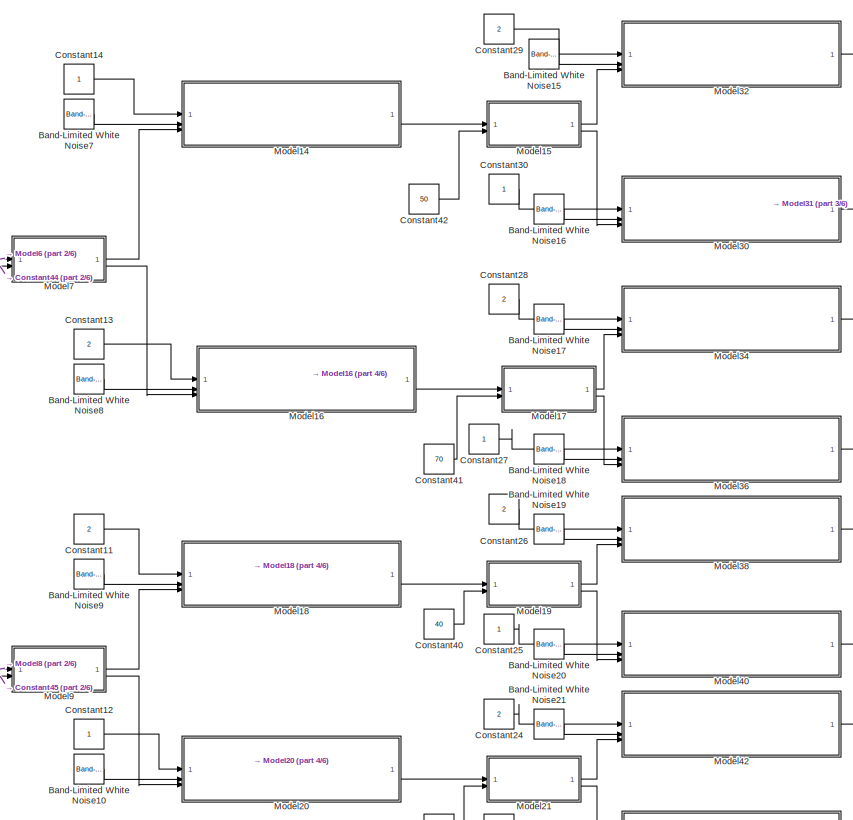
[diagram: root canvas - part 1/6, top center region]
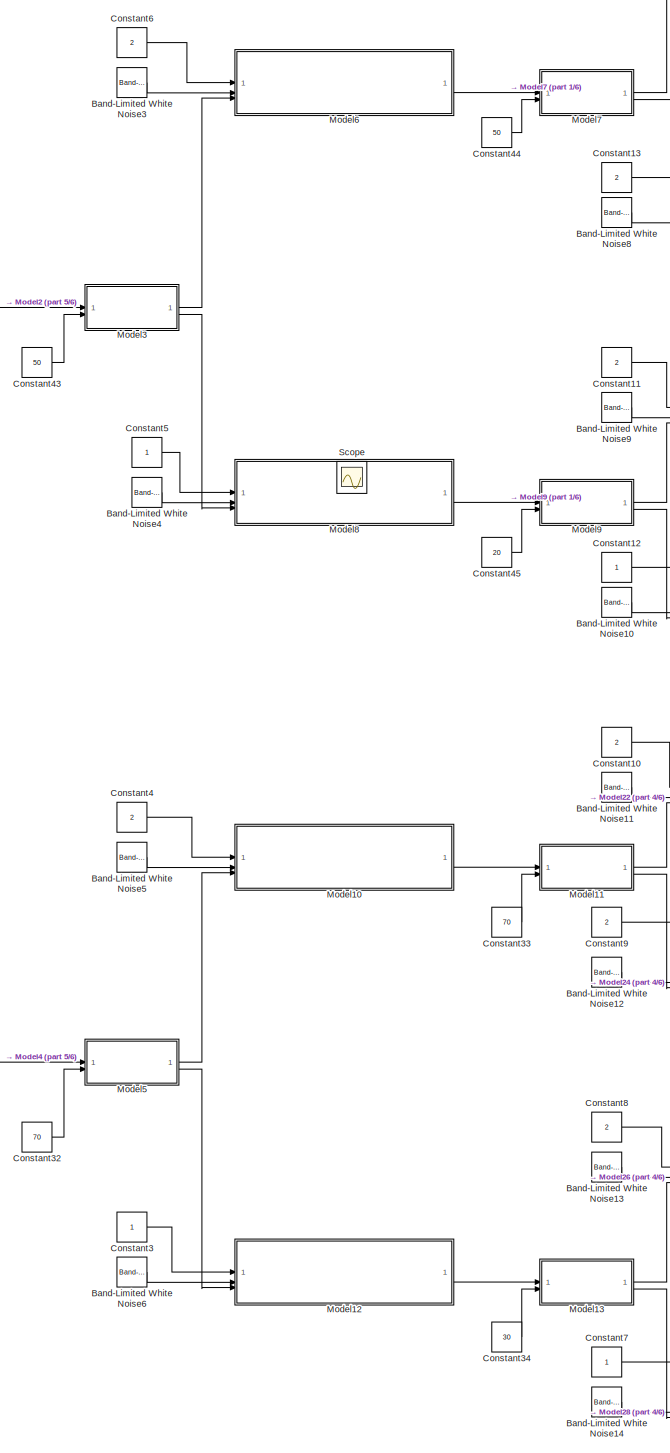
[diagram: root canvas - part 2/6, center side, full height]
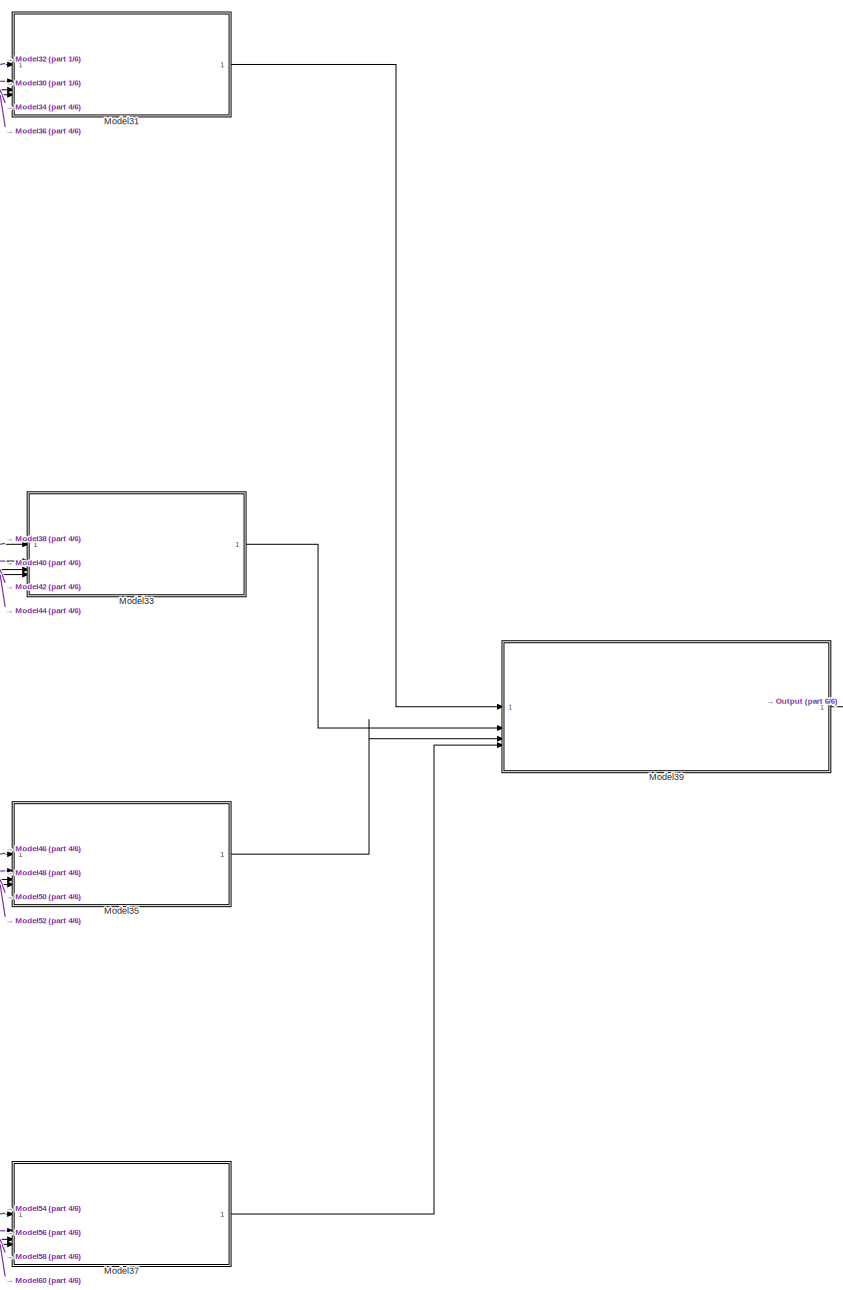
[diagram: root canvas - part 3/6, right side, full height]
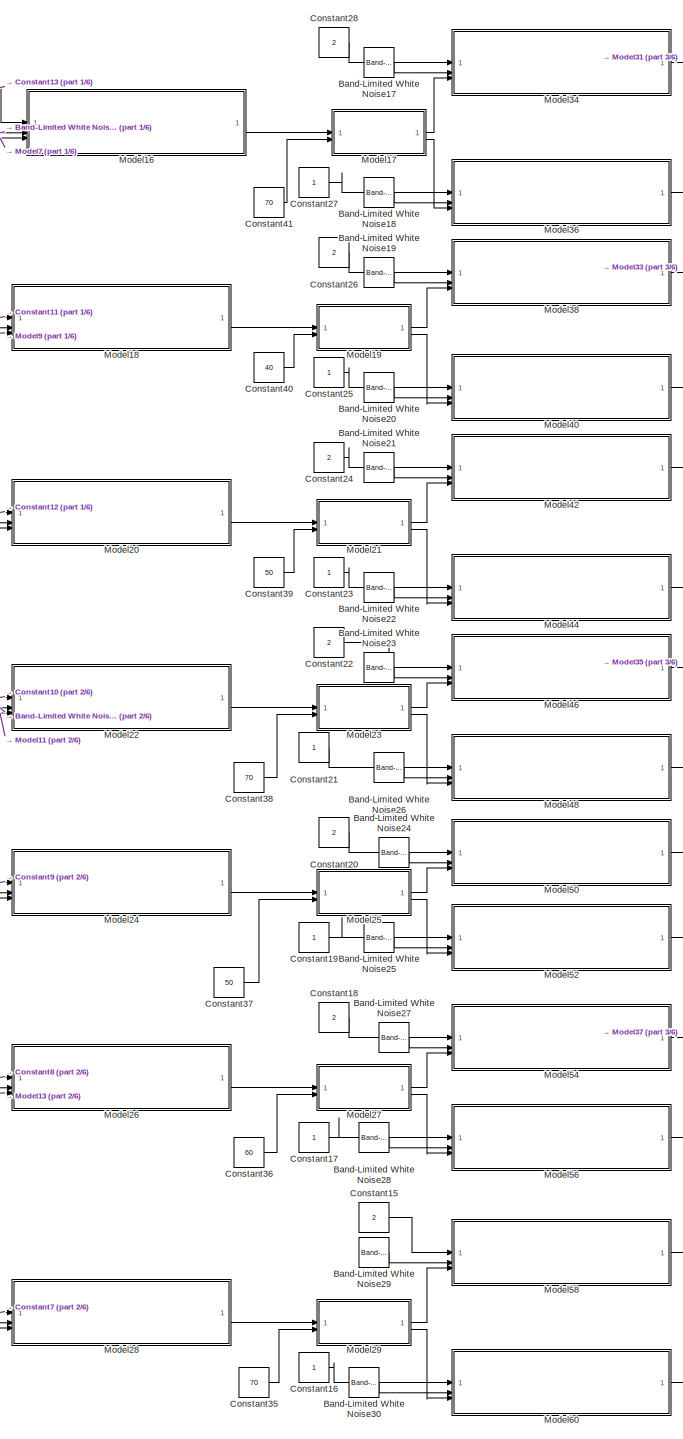
[diagram: root canvas - part 4/6, center side, full height]
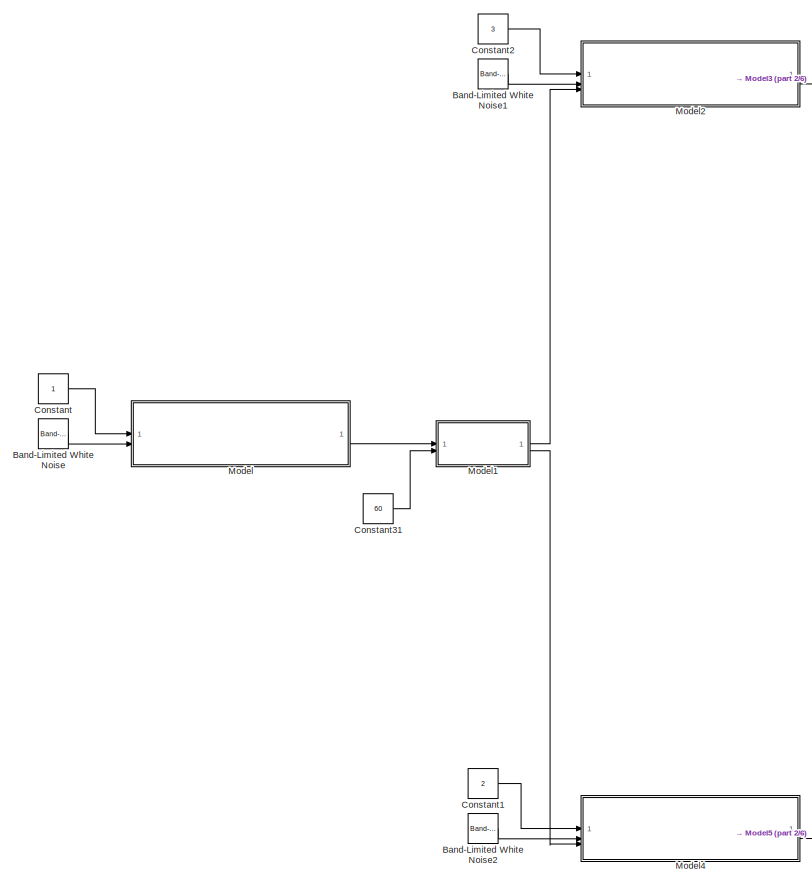
[diagram: root canvas - part 5/6, middle left region]
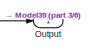
[diagram: root canvas - part 6/6, middle right region]
MODEL slx_685354e4d09e
KIND model
CONFIG AbsTol = auto
CONFIG EnableMultiTasking = off
CONFIG FixedStep = auto
CONFIG MaxStep = auto
CONFIG MinStep = auto
CONFIG RelTol = 1e-3
CONFIG SampleTimeConstraint = Unconstrained
CONFIG SolverName = VariableStepAuto
CONFIG StartTime = 0.0
CONFIG StopTime = 10.0
BLOCK [Reference] Band-Limited White Noise  REF=simulink/Sources/Band-Limited
White Noise
  SourceBlock = simulink/Sources/Band-Limited\nWhite Noise
  SourceType = Band-Limited White Noise.
BLOCK [Reference] Band-Limited White Noise1  REF=simulink/Sources/Band-Limited
White Noise
  SourceBlock = simulink/Sources/Band-Limited\nWhite Noise
  SourceType = Band-Limited White Noise.
BLOCK [Reference] Band-Limited White Noise10  REF=simulink/Sources/Band-Limited
White Noise
  SourceBlock = simulink/Sources/Band-Limited\nWhite Noise
  SourceType = Band-Limited White Noise.
BLOCK [Reference] Band-Limited White Noise11  REF=simulink/Sources/Band-Limited
White Noise
  SourceBlock = simulink/Sources/Band-Limited\nWhite Noise
  SourceType = Band-Limited White Noise.
BLOCK [Reference] Band-Limited White Noise12  REF=simulink/Sources/Band-Limited
White Noise
  SourceBlock = simulink/Sources/Band-Limited\nWhite Noise
  SourceType = Band-Limited White Noise.
BLOCK [Reference] Band-Limited White Noise13  REF=simulink/Sources/Band-Limited
White Noise
  SourceBlock = simulink/Sources/Band-Limited\nWhite Noise
  SourceType = Band-Limited White Noise.
BLOCK [Reference] Band-Limited White Noise14  REF=simulink/Sources/Band-Limited
White Noise
  SourceBlock = simulink/Sources/Band-Limited\nWhite Noise
  SourceType = Band-Limited White Noise.
BLOCK [Reference] Band-Limited White Noise15  REF=simulink/Sources/Band-Limited
White Noise
  SourceBlock = simulink/Sources/Band-Limited\nWhite Noise
  SourceType = Band-Limited White Noise.
BLOCK [Reference] Band-Limited White Noise16  REF=simulink/Sources/Band-Limited
White Noise
  SourceBlock = simulink/Sources/Band-Limited\nWhite Noise
  SourceType = Band-Limited White Noise.
BLOCK [Reference] Band-Limited White Noise17  REF=simulink/Sources/Band-Limited
White Noise
  SourceBlock = simulink/Sources/Band-Limited\nWhite Noise
  SourceType = Band-Limited White Noise.
BLOCK [Reference] Band-Limited White Noise18  REF=simulink/Sources/Band-Limited
White Noise
  SourceBlock = simulink/Sources/Band-Limited\nWhite Noise
  SourceType = Band-Limited White Noise.
BLOCK [Reference] Band-Limited White Noise19  REF=simulink/Sources/Band-Limited
White Noise
  SourceBlock = simulink/Sources/Band-Limited\nWhite Noise
  SourceType = Band-Limited White Noise.
BLOCK [Reference] Band-Limited White Noise2  REF=simulink/Sources/Band-Limited
White Noise
  SourceBlock = simulink/Sources/Band-Limited\nWhite Noise
  SourceType = Band-Limited White Noise.
BLOCK [Reference] Band-Limited White Noise20  REF=simulink/Sources/Band-Limited
White Noise
  SourceBlock = simulink/Sources/Band-Limited\nWhite Noise
  SourceType = Band-Limited White Noise.
BLOCK [Reference] Band-Limited White Noise21  REF=simulink/Sources/Band-Limited
White Noise
  SourceBlock = simulink/Sources/Band-Limited\nWhite Noise
  SourceType = Band-Limited White Noise.
BLOCK [Reference] Band-Limited White Noise22  REF=simulink/Sources/Band-Limited
White Noise
  SourceBlock = simulink/Sources/Band-Limited\nWhite Noise
  SourceType = Band-Limited White Noise.
BLOCK [Reference] Band-Limited White Noise23  REF=simulink/Sources/Band-Limited
White Noise
  SourceBlock = simulink/Sources/Band-Limited\nWhite Noise
  SourceType = Band-Limited White Noise.
BLOCK [Reference] Band-Limited White Noise24  REF=simulink/Sources/Band-Limited
White Noise
  SourceBlock = simulink/Sources/Band-Limited\nWhite Noise
  SourceType = Band-Limited White Noise.
BLOCK [Reference] Band-Limited White Noise25  REF=simulink/Sources/Band-Limited
White Noise
  SourceBlock = simulink/Sources/Band-Limited\nWhite Noise
  SourceType = Band-Limited White Noise.
BLOCK [Reference] Band-Limited White Noise26  REF=simulink/Sources/Band-Limited
White Noise
  SourceBlock = simulink/Sources/Band-Limited\nWhite Noise
  SourceType = Band-Limited White Noise.
BLOCK [Reference] Band-Limited White Noise27  REF=simulink/Sources/Band-Limited
White Noise
  SourceBlock = simulink/Sources/Band-Limited\nWhite Noise
  SourceType = Band-Limited White Noise.
BLOCK [Reference] Band-Limited White Noise28  REF=simulink/Sources/Band-Limited
White Noise
  SourceBlock = simulink/Sources/Band-Limited\nWhite Noise
  SourceType = Band-Limited White Noise.
BLOCK [Reference] Band-Limited White Noise29  REF=simulink/Sources/Band-Limited
White Noise
  SourceBlock = simulink/Sources/Band-Limited\nWhite Noise
  SourceType = Band-Limited White Noise.
BLOCK [Reference] Band-Limited White Noise3  REF=simulink/Sources/Band-Limited
White Noise
  SourceBlock = simulink/Sources/Band-Limited\nWhite Noise
  SourceType = Band-Limited White Noise.
BLOCK [Reference] Band-Limited White Noise30  REF=simulink/Sources/Band-Limited
White Noise
  SourceBlock = simulink/Sources/Band-Limited\nWhite Noise
  SourceType = Band-Limited White Noise.
BLOCK [Reference] Band-Limited White Noise4  REF=simulink/Sources/Band-Limited
White Noise
  SourceBlock = simulink/Sources/Band-Limited\nWhite Noise
  SourceType = Band-Limited White Noise.
BLOCK [Reference] Band-Limited White Noise5  REF=simulink/Sources/Band-Limited
White Noise
  SourceBlock = simulink/Sources/Band-Limited\nWhite Noise
  SourceType = Band-Limited White Noise.
BLOCK [Reference] Band-Limited White Noise6  REF=simulink/Sources/Band-Limited
White Noise
  SourceBlock = simulink/Sources/Band-Limited\nWhite Noise
  SourceType = Band-Limited White Noise.
BLOCK [Reference] Band-Limited White Noise7  REF=simulink/Sources/Band-Limited
White Noise
  SourceBlock = simulink/Sources/Band-Limited\nWhite Noise
  SourceType = Band-Limited White Noise.
BLOCK [Reference] Band-Limited White Noise8  REF=simulink/Sources/Band-Limited
White Noise
  SourceBlock = simulink/Sources/Band-Limited\nWhite Noise
  SourceType = Band-Limited White Noise.
BLOCK [Reference] Band-Limited White Noise9  REF=simulink/Sources/Band-Limited
White Noise
  SourceBlock = simulink/Sources/Band-Limited\nWhite Noise
  SourceType = Band-Limited White Noise.
BLOCK [Constant] Constant
BLOCK [Constant] Constant1
  Value = 2
BLOCK [Constant] Constant10
  Value = 2
BLOCK [Constant] Constant11
  Value = 2
BLOCK [Constant] Constant12
BLOCK [Constant] Constant13
  Value = 2
BLOCK [Constant] Constant14
BLOCK [Constant] Constant15
  Value = 2
BLOCK [Constant] Constant16
BLOCK [Constant] Constant17
BLOCK [Constant] Constant18
  Value = 2
BLOCK [Constant] Constant19
BLOCK [Constant] Constant2
  Value = 3
BLOCK [Constant] Constant20
  Value = 2
BLOCK [Constant] Constant21
BLOCK [Constant] Constant22
  Value = 2
BLOCK [Constant] Constant23
BLOCK [Constant] Constant24
  Value = 2
BLOCK [Constant] Constant25
BLOCK [Constant] Constant26
  Value = 2
BLOCK [Constant] Constant27
BLOCK [Constant] Constant28
  Value = 2
BLOCK [Constant] Constant29
  Value = 2
BLOCK [Constant] Constant3
BLOCK [Constant] Constant30
BLOCK [Constant] Constant31
  Value = 60
BLOCK [Constant] Constant32
  Value = 70
BLOCK [Constant] Constant33
  Value = 70
BLOCK [Constant] Constant34
  Value = 30
BLOCK [Constant] Constant35
  Value = 70
BLOCK [Constant] Constant36
  Value = 60
BLOCK [Constant] Constant37
  Value = 50
BLOCK [Constant] Constant38
  Value = 70
BLOCK [Constant] Constant39
  Value = 50
BLOCK [Constant] Constant4
  Value = 2
BLOCK [Constant] Constant40
  Value = 40
BLOCK [Constant] Constant41
  Value = 70
BLOCK [Constant] Constant42
  Value = 50
BLOCK [Constant] Constant43
  Value = 50
BLOCK [Constant] Constant44
  Value = 50
BLOCK [Constant] Constant45
  Value = 20
BLOCK [Constant] Constant5
BLOCK [Constant] Constant6
  Value = 2
BLOCK [Constant] Constant7
BLOCK [Constant] Constant8
  Value = 2
BLOCK [Constant] Constant9
  Value = 2
BLOCK [ModelReference] Model
  ModelNameDialog = UpdateProcessTime.slx
  ModelReferenceVersion = 1.5
BLOCK [ModelReference] Model1
  ModelNameDialog = CaseNode2.slx
  ModelReferenceVersion = 1.7
BLOCK [ModelReference] Model10
  ModelNameDialog = UpdateProcessTime.slx
  ModelReferenceVersion = 1.5
BLOCK [ModelReference] Model11
  ModelNameDialog = CaseNode2.slx
  ModelReferenceVersion = 1.7
BLOCK [ModelReference] Model12
  ModelNameDialog = UpdateProcessTime.slx
  ModelReferenceVersion = 1.5
BLOCK [ModelReference] Model13
  ModelNameDialog = CaseNode2.slx
  ModelReferenceVersion = 1.7
BLOCK [ModelReference] Model14
  ModelNameDialog = UpdateProcessTime.slx
  ModelReferenceVersion = 1.5
BLOCK [ModelReference] Model15
  ModelNameDialog = CaseNode2.slx
  ModelReferenceVersion = 1.7
BLOCK [ModelReference] Model16
  ModelNameDialog = UpdateProcessTime.slx
  ModelReferenceVersion = 1.5
BLOCK [ModelReference] Model17
  ModelNameDialog = CaseNode2.slx
  ModelReferenceVersion = 1.7
BLOCK [ModelReference] Model18
  ModelNameDialog = UpdateProcessTime.slx
  ModelReferenceVersion = 1.5
BLOCK [ModelReference] Model19
  ModelNameDialog = CaseNode2.slx
  ModelReferenceVersion = 1.7
BLOCK [ModelReference] Model2
  ModelNameDialog = UpdateProcessTime.slx
  ModelReferenceVersion = 1.5
BLOCK [ModelReference] Model20
  ModelNameDialog = UpdateProcessTime.slx
  ModelReferenceVersion = 1.5
BLOCK [ModelReference] Model21
  ModelNameDialog = CaseNode2.slx
  ModelReferenceVersion = 1.7
BLOCK [ModelReference] Model22
  ModelNameDialog = UpdateProcessTime.slx
  ModelReferenceVersion = 1.5
BLOCK [ModelReference] Model23
  ModelNameDialog = CaseNode2.slx
  ModelReferenceVersion = 1.7
BLOCK [ModelReference] Model24
  ModelNameDialog = UpdateProcessTime.slx
  ModelReferenceVersion = 1.5
BLOCK [ModelReference] Model25
  ModelNameDialog = CaseNode2.slx
  ModelReferenceVersion = 1.7
BLOCK [ModelReference] Model26
  ModelNameDialog = UpdateProcessTime.slx
  ModelReferenceVersion = 1.5
BLOCK [ModelReference] Model27
  ModelNameDialog = CaseNode2.slx
  ModelReferenceVersion = 1.7
BLOCK [ModelReference] Model28
  ModelNameDialog = UpdateProcessTime.slx
  ModelReferenceVersion = 1.5
BLOCK [ModelReference] Model29
  ModelNameDialog = CaseNode2.slx
  ModelReferenceVersion = 1.7
BLOCK [ModelReference] Model3
  ModelNameDialog = CaseNode2.slx
  ModelReferenceVersion = 1.7
BLOCK [ModelReference] Model30
  ModelNameDialog = UpdateProcessTime.slx
  ModelReferenceVersion = 1.5
BLOCK [ModelReference] Model31
  ModelNameDialog = Mux4.slx
  ModelReferenceVersion = 1.3
BLOCK [ModelReference] Model32
  ModelNameDialog = UpdateProcessTime.slx
  ModelReferenceVersion = 1.5
BLOCK [ModelReference] Model33
  ModelNameDialog = Mux4.slx
  ModelReferenceVersion = 1.3
BLOCK [ModelReference] Model34
  ModelNameDialog = UpdateProcessTime.slx
  ModelReferenceVersion = 1.5
BLOCK [ModelReference] Model35
  ModelNameDialog = Mux4.slx
  ModelReferenceVersion = 1.3
BLOCK [ModelReference] Model36
  ModelNameDialog = UpdateProcessTime.slx
  ModelReferenceVersion = 1.5
BLOCK [ModelReference] Model37
  ModelNameDialog = Mux4.slx
  ModelReferenceVersion = 1.3
BLOCK [ModelReference] Model38
  ModelNameDialog = UpdateProcessTime.slx
  ModelReferenceVersion = 1.5
BLOCK [ModelReference] Model39
  ModelNameDialog = Mux4.slx
  ModelReferenceVersion = 1.3
BLOCK [ModelReference] Model4
  ModelNameDialog = UpdateProcessTime.slx
  ModelReferenceVersion = 1.5
BLOCK [ModelReference] Model40
  ModelNameDialog = UpdateProcessTime.slx
  ModelReferenceVersion = 1.5
BLOCK [ModelReference] Model42
  ModelNameDialog = UpdateProcessTime.slx
  ModelReferenceVersion = 1.5
BLOCK [ModelReference] Model44
  ModelNameDialog = UpdateProcessTime.slx
  ModelReferenceVersion = 1.5
BLOCK [ModelReference] Model46
  ModelNameDialog = UpdateProcessTime.slx
  ModelReferenceVersion = 1.5
BLOCK [ModelReference] Model48
  ModelNameDialog = UpdateProcessTime.slx
  ModelReferenceVersion = 1.5
BLOCK [ModelReference] Model5
  ModelNameDialog = CaseNode2.slx
  ModelReferenceVersion = 1.7
BLOCK [ModelReference] Model50
  ModelNameDialog = UpdateProcessTime.slx
  ModelReferenceVersion = 1.5
BLOCK [ModelReference] Model52
  ModelNameDialog = UpdateProcessTime.slx
  ModelReferenceVersion = 1.5
BLOCK [ModelReference] Model54
  ModelNameDialog = UpdateProcessTime.slx
  ModelReferenceVersion = 1.5
BLOCK [ModelReference] Model56
  ModelNameDialog = UpdateProcessTime.slx
  ModelReferenceVersion = 1.5
BLOCK [ModelReference] Model58
  ModelNameDialog = UpdateProcessTime.slx
  ModelReferenceVersion = 1.5
BLOCK [ModelReference] Model6
  ModelNameDialog = UpdateProcessTime.slx
  ModelReferenceVersion = 1.5
BLOCK [ModelReference] Model60
  ModelNameDialog = UpdateProcessTime.slx
  ModelReferenceVersion = 1.5
BLOCK [ModelReference] Model7
  ModelNameDialog = CaseNode2.slx
  ModelReferenceVersion = 1.7
BLOCK [ModelReference] Model8
  ModelNameDialog = UpdateProcessTime.slx
  ModelReferenceVersion = 1.5
BLOCK [ModelReference] Model9
  ModelNameDialog = CaseNode2.slx
  ModelReferenceVersion = 1.7
BLOCK [Outport] Output
BLOCK [Scope] Scope
  Floating = off
  IOType = viewer
  NumInputPorts = 1
  ScopeSpecificationString = Simulink.scopes.TimeScopeBlockCfg('CurrentConfiguration', extmgr.ConfigurationSet(extmgr.Configuration('Core','General UI',true),extmgr.Configuration('Core','Source UI',true),extmgr.Configuration('Sources','WiredSimulink',true),extmgr.Configuration('Visuals','Time Domain',true,'SerializedDisplays',{struct('MinYLimReal','5.5','MaxYLimReal','10.5','YLabelReal','','MinYLimMag','5.5','MaxYLimMag','10....<+1481ch>
LINE Band-Limited White Noise10:1 -> Model20:2
LINE Band-Limited White Noise11:1 -> Model22:2
LINE Band-Limited White Noise12:1 -> Model24:2
LINE Band-Limited White Noise13:1 -> Model26:2
LINE Band-Limited White Noise14:1 -> Model28:2
LINE Band-Limited White Noise15:1 -> Model32:2
LINE Band-Limited White Noise16:1 -> Model30:2
LINE Band-Limited White Noise17:1 -> Model34:2
LINE Band-Limited White Noise18:1 -> Model36:2
LINE Band-Limited White Noise19:1 -> Model38:2
LINE Band-Limited White Noise1:1 -> Model2:2
LINE Band-Limited White Noise20:1 -> Model40:2
LINE Band-Limited White Noise21:1 -> Model42:2
LINE Band-Limited White Noise22:1 -> Model44:2
LINE Band-Limited White Noise23:1 -> Model46:2
LINE Band-Limited White Noise24:1 -> Model50:2
LINE Band-Limited White Noise25:1 -> Model52:2
LINE Band-Limited White Noise26:1 -> Model48:2
LINE Band-Limited White Noise27:1 -> Model54:2
LINE Band-Limited White Noise28:1 -> Model56:2
LINE Band-Limited White Noise29:1 -> Model58:2
LINE Band-Limited White Noise2:1 -> Model4:2
LINE Band-Limited White Noise30:1 -> Model60:2
LINE Band-Limited White Noise3:1 -> Model6:2
LINE Band-Limited White Noise4:1 -> Model8:2
LINE Band-Limited White Noise5:1 -> Model10:2
LINE Band-Limited White Noise6:1 -> Model12:2
LINE Band-Limited White Noise7:1 -> Model14:2
LINE Band-Limited White Noise8:1 -> Model16:2
LINE Band-Limited White Noise9:1 -> Model18:2
LINE Band-Limited White Noise:1 -> Model:2
LINE Constant10:1 -> Model22:1
LINE Constant11:1 -> Model18:1
LINE Constant12:1 -> Model20:1
LINE Constant13:1 -> Model16:1
LINE Constant14:1 -> Model14:1
LINE Constant15:1 -> Model58:1
LINE Constant16:1 -> Model60:1
LINE Constant17:1 -> Model56:1
LINE Constant18:1 -> Model54:1
LINE Constant19:1 -> Model52:1
LINE Constant1:1 -> Model4:1
LINE Constant20:1 -> Model50:1
LINE Constant21:1 -> Model48:1
LINE Constant22:1 -> Model46:1
LINE Constant23:1 -> Model44:1
LINE Constant24:1 -> Model42:1
LINE Constant25:1 -> Model40:1
LINE Constant26:1 -> Model38:1
LINE Constant27:1 -> Model36:1
LINE Constant28:1 -> Model34:1
LINE Constant29:1 -> Model32:1
LINE Constant2:1 -> Model2:1
LINE Constant30:1 -> Model30:1
LINE Constant31:1 -> Model1:2
LINE Constant32:1 -> Model5:2
LINE Constant33:1 -> Model11:2
LINE Constant34:1 -> Model13:2
LINE Constant35:1 -> Model29:2
LINE Constant36:1 -> Model27:2
LINE Constant37:1 -> Model25:2
LINE Constant38:1 -> Model23:2
LINE Constant39:1 -> Model21:2
LINE Constant3:1 -> Model12:1
LINE Constant40:1 -> Model19:2
LINE Constant41:1 -> Model17:2
LINE Constant42:1 -> Model15:2
LINE Constant43:1 -> Model3:2
LINE Constant44:1 -> Model7:2
LINE Constant45:1 -> Model9:2
LINE Constant4:1 -> Model10:1
LINE Constant5:1 -> Model8:1
LINE Constant6:1 -> Model6:1
LINE Constant7:1 -> Model28:1
LINE Constant8:1 -> Model26:1
LINE Constant9:1 -> Model24:1
LINE Constant:1 -> Model:1
LINE Model10:1 -> Model11:1
LINE Model11:1 -> Model22:3
LINE Model11:2 -> Model24:3
LINE Model12:1 -> Model13:1
LINE Model13:1 -> Model26:3
LINE Model13:2 -> Model28:3
LINE Model14:1 -> Model15:1
LINE Model15:1 -> Model32:3
LINE Model15:2 -> Model30:3
LINE Model16:1 -> Model17:1
LINE Model17:1 -> Model34:3
LINE Model17:2 -> Model36:3
LINE Model18:1 -> Model19:1
LINE Model19:1 -> Model38:3
LINE Model19:2 -> Model40:3
LINE Model1:1 -> Model2:3
LINE Model1:2 -> Model4:3
LINE Model20:1 -> Model21:1
LINE Model21:1 -> Model42:3
LINE Model21:2 -> Model44:3
LINE Model22:1 -> Model23:1
LINE Model23:1 -> Model46:3
LINE Model23:2 -> Model48:3
LINE Model24:1 -> Model25:1
LINE Model25:1 -> Model50:3
LINE Model25:2 -> Model52:3
LINE Model26:1 -> Model27:1
LINE Model27:1 -> Model54:3
LINE Model27:2 -> Model56:3
LINE Model28:1 -> Model29:1
LINE Model29:1 -> Model58:3
LINE Model29:2 -> Model60:3
LINE Model2:1 -> Model3:1
LINE Model30:1 -> Model31:2
LINE Model31:1 -> Model39:1
LINE Model32:1 -> Model31:1
LINE Model33:1 -> Model39:2
LINE Model34:1 -> Model31:3
LINE Model35:1 -> Model39:3
LINE Model36:1 -> Model31:4
LINE Model37:1 -> Model39:4
LINE Model38:1 -> Model33:1
LINE Model39:1 -> Output:1
LINE Model3:1 -> Model6:3
LINE Model3:2 -> Model8:3
LINE Model40:1 -> Model33:2
LINE Model42:1 -> Model33:3
LINE Model44:1 -> Model33:4
LINE Model46:1 -> Model35:1
LINE Model48:1 -> Model35:2
LINE Model4:1 -> Model5:1
LINE Model50:1 -> Model35:3
LINE Model52:1 -> Model35:4
LINE Model54:1 -> Model37:1
LINE Model56:1 -> Model37:2
LINE Model58:1 -> Model37:3
LINE Model5:1 -> Model10:3
LINE Model5:2 -> Model12:3
LINE Model60:1 -> Model37:4
LINE Model6:1 -> Model7:1
LINE Model7:1 -> Model14:3
LINE Model7:2 -> Model16:3
LINE Model8:1 -> Model9:1
LINE Model9:1 -> Model18:3
LINE Model9:2 -> Model20:3
LINE Model:1 -> Model1:1
